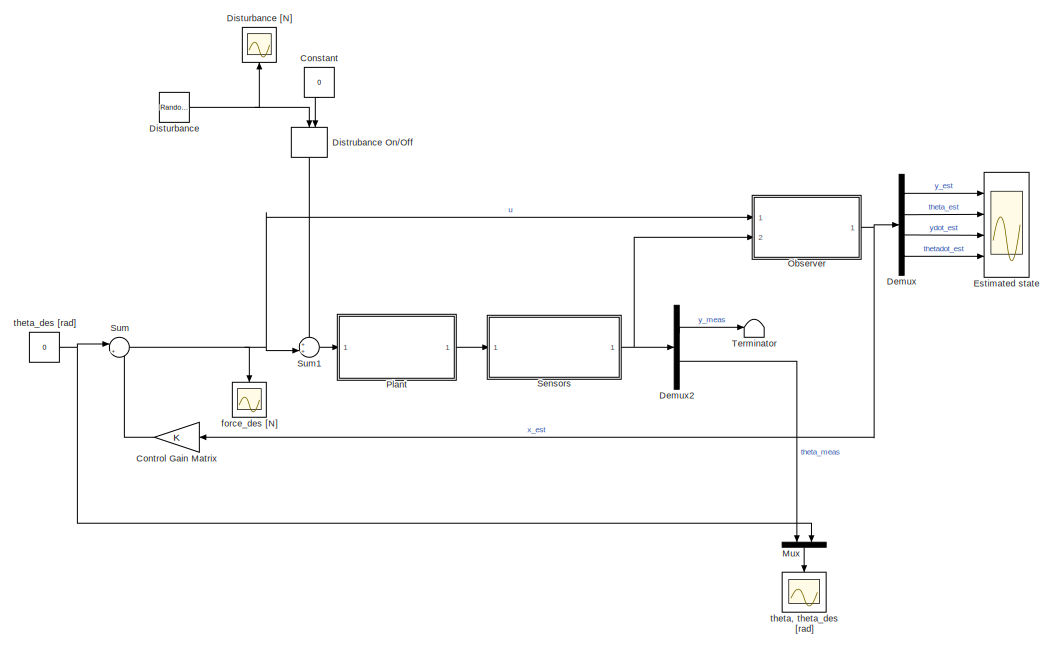
[diagram: root canvas - part 1/2, center side, full height]
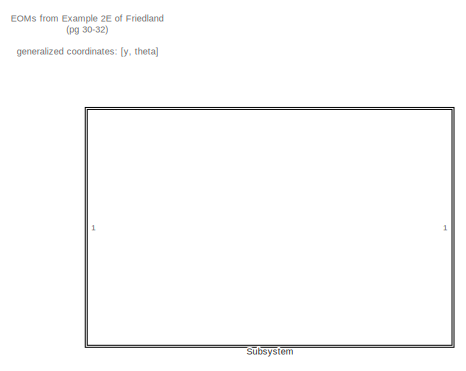
[diagram: root canvas - part 2/2, middle left region]
MODEL slx_8a9c9eab5e9f
KIND model
CONFIG InitFcn = pendulumOnACart_observer_PD_init;
BLOCK [Constant] Constant
  Value = 0
BLOCK [Gain] Control Gain Matrix
  Gain = K
  Multiplication = Matrix(K*u)
  OutDataTypeStr = Inherit: Inherit via internal rule
  ParamDataTypeStr = Inherit: Inherit via internal rule
  SaturateOnIntegerOverflow = off
BLOCK [Demux] Demux
  DisplayOption = bar
  Ports = [1, 4]
BLOCK [Demux] Demux2
  DisplayOption = bar
  Outputs = 2
  Ports = [1, 2]
BLOCK [ManualSwitch] Distrubance On//Off
  CurrentSetting = 0
BLOCK [RandomNumber] Disturbance
  SampleTime = dt*100
  Variance = .5
BLOCK [Scope] Disturbance [N]
  DataFormat = StructureWithTime
  Floating = off
  LimitDataPoints = off
  NumInputPorts = 1
  Ports = [1]
  SampleTime = 0
  SaveName = ScopeData7
  ShowLegends = off
  TimeRange = 5
  YMax = 80
  YMin = -20
BLOCK [Scope] Estimated state
  DataFormat = StructureWithTime
  Floating = off
  LimitDataPoints = off
  NumInputPorts = 4
  Ports = [4]
  SampleTime = 0
  SaveName = ScopeData5
  ShowLegends = off
  TimeRange = 5
  YMax = 5~0.09999999999999998~2~0
  YMin = -15~-0.3~-6~-2.5
  ZoomMode = yonly
BLOCK [Mux] Mux
  DisplayOption = bar
  Inputs = 2
  Ports = [2, 1]
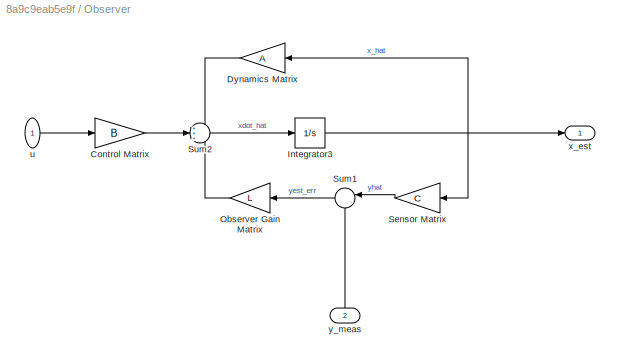
BLOCK [SubSystem] Observer
  FunctionWithSeparateData = off
  MaskHideContents = off
  MinAlgLoopOccurrences = off
  Opaque = off
  Ports = [2, 1]
  PropExecContextOutsideSubsystem = off
  RTWSystemCode = Auto
  RequestExecContextInheritance = off
BLOCK [Gain] Observer/Control Matrix
  Gain = B
  Multiplication = Matrix(K*u)
  OutDataTypeStr = Inherit: Inherit via internal rule
  ParamDataTypeStr = Inherit: Inherit via internal rule
  SaturateOnIntegerOverflow = off
BLOCK [Gain] Observer/Dynamics Matrix
  Gain = A
  Multiplication = Matrix(K*u)
  OutDataTypeStr = Inherit: Inherit via internal rule
  ParamDataTypeStr = Inherit: Inherit via internal rule
  SaturateOnIntegerOverflow = off
BLOCK [Integrator] Observer/Integrator3
  Ports = [1, 1]
BLOCK [Gain] Observer/Observer Gain Matrix
  Gain = L
  Multiplication = Matrix(K*u)
  OutDataTypeStr = Inherit: Inherit via internal rule
  ParamDataTypeStr = Inherit: Inherit via internal rule
  SaturateOnIntegerOverflow = off
BLOCK [Gain] Observer/Sensor Matrix
  Gain = C
  Multiplication = Matrix(K*u)
  OutDataTypeStr = Inherit: Inherit via internal rule
  ParamDataTypeStr = Inherit: Inherit via internal rule
  SaturateOnIntegerOverflow = off
BLOCK [Sum] Observer/Sum1
  IconShape = round
  InputSameDT = off
  Inputs = |-+
  OutDataTypeStr = Inherit: Inherit via internal rule
  Ports = [2, 1]
  SaturateOnIntegerOverflow = off
BLOCK [Sum] Observer/Sum2
  IconShape = round
  InputSameDT = off
  Inputs = +++
  OutDataTypeStr = Inherit: Inherit via internal rule
  Ports = [3, 1]
  SaturateOnIntegerOverflow = off
BLOCK [Inport] Observer/u
  IconDisplay = Port number
BLOCK [Outport] Observer/x_est
  IconDisplay = Port number
BLOCK [Inport] Observer/y_meas
  IconDisplay = Port number
  Port = 2
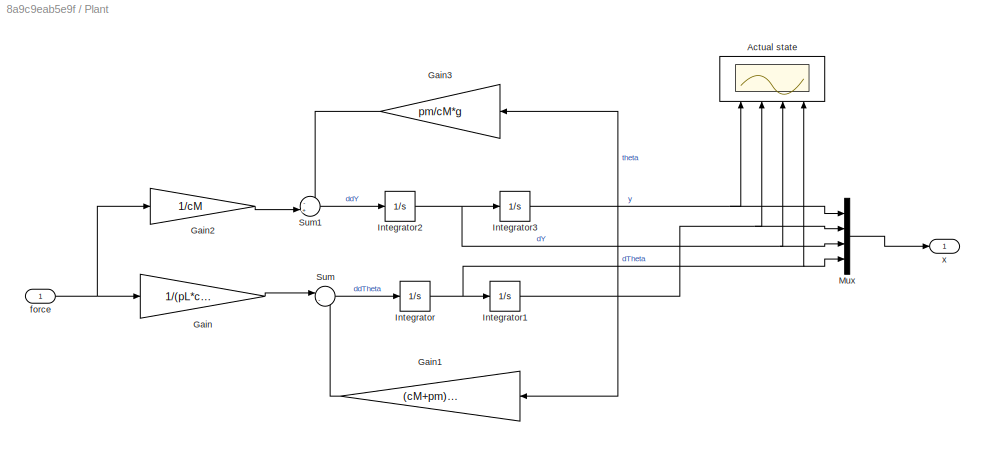
BLOCK [SubSystem] Plant
  FunctionWithSeparateData = off
  MaskHideContents = off
  MinAlgLoopOccurrences = off
  Opaque = off
  Ports = [1, 1]
  PropExecContextOutsideSubsystem = off
  RTWSystemCode = Auto
  RequestExecContextInheritance = off
BLOCK [Scope] Plant/Actual state
  DataFormat = StructureWithTime
  Floating = off
  LimitDataPoints = off
  NumInputPorts = 4
  Ports = [4]
  SampleTime = 0
  SaveName = ScopeData6
  ShowLegends = off
  TimeRange = 5
  YMax = 5~0.2~2~1
  YMin = -15~-0.3~-6~-2
BLOCK [Gain] Plant/Gain
  Gain = 1/(pL*cM)
  OutDataTypeStr = Inherit: Inherit via internal rule
  ParamDataTypeStr = Inherit: Inherit via internal rule
  SaturateOnIntegerOverflow = off
BLOCK [Gain] Plant/Gain1
  Gain = (cM+pm)/(pL*cM)*g
  OutDataTypeStr = Inherit: Inherit via internal rule
  ParamDataTypeStr = Inherit: Inherit via internal rule
  SaturateOnIntegerOverflow = off
BLOCK [Gain] Plant/Gain2
  Gain = 1/cM
  OutDataTypeStr = Inherit: Inherit via internal rule
  ParamDataTypeStr = Inherit: Inherit via internal rule
  SaturateOnIntegerOverflow = off
BLOCK [Gain] Plant/Gain3
  Gain = pm/cM*g
  OutDataTypeStr = Inherit: Inherit via internal rule
  ParamDataTypeStr = Inherit: Inherit via internal rule
  SaturateOnIntegerOverflow = off
BLOCK [Integrator] Plant/Integrator
  InitialCondition = dTheta_init
  Ports = [1, 1]
BLOCK [Integrator] Plant/Integrator1
  InitialCondition = theta_init
  Ports = [1, 1]
BLOCK [Integrator] Plant/Integrator2
  Ports = [1, 1]
BLOCK [Integrator] Plant/Integrator3
  Ports = [1, 1]
BLOCK [Mux] Plant/Mux
  DisplayOption = bar
  Ports = [4, 1]
BLOCK [Sum] Plant/Sum
  IconShape = round
  InputSameDT = off
  Inputs = |-+
  OutDataTypeStr = Inherit: Inherit via internal rule
  Ports = [2, 1]
  SaturateOnIntegerOverflow = off
BLOCK [Sum] Plant/Sum1
  IconShape = round
  InputSameDT = off
  Inputs = -+|
  OutDataTypeStr = Inherit: Inherit via internal rule
  Ports = [2, 1]
  SaturateOnIntegerOverflow = off
BLOCK [Inport] Plant/force
  IconDisplay = Port number
BLOCK [Outport] Plant/x
  IconDisplay = Port number
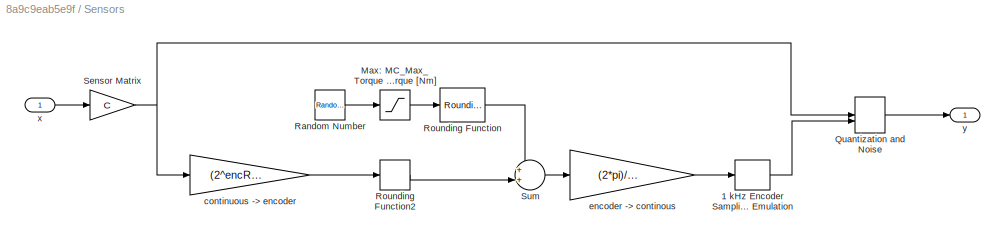
BLOCK [SubSystem] Sensors
  FunctionWithSeparateData = off
  MaskHideContents = off
  MinAlgLoopOccurrences = off
  Opaque = off
  Ports = [1, 1]
  PropExecContextOutsideSubsystem = off
  RTWSystemCode = Auto
  RequestExecContextInheritance = off
BLOCK [ZeroOrderHold] Sensors/1 kHz Encoder Sampling Emulation
  SampleTime = dt
BLOCK [Saturate] Sensors/Max: MC_Max_Torque [Nm] Min: MC_Min_Torque [Nm]
  InputPortMap = u0
  LowerLimit = -1
  Ports = [1, 1]
  UpperLimit = 1
BLOCK [ManualSwitch] Sensors/Quantization and Noise
  CurrentSetting = 0
BLOCK [RandomNumber] Sensors/Random Number
  SampleTime = dt*10
  Variance = 0.5
BLOCK [Rounding] Sensors/Rounding Function
  Operator = round
BLOCK [Rounding] Sensors/Rounding Function2
BLOCK [Gain] Sensors/Sensor Matrix
  Gain = C
  Multiplication = Matrix(K*u)
  OutDataTypeStr = Inherit: Inherit via internal rule
  ParamDataTypeStr = Inherit: Inherit via internal rule
  SaturateOnIntegerOverflow = off
BLOCK [Sum] Sensors/Sum
  IconShape = round
  InputSameDT = off
  Inputs = ++|
  OutDataTypeStr = Inherit: Inherit via internal rule
  Ports = [2, 1]
  SaturateOnIntegerOverflow = off
BLOCK [Gain] Sensors/continuous -> encoder
  Gain = (2^encRez)/(2*pi)
  OutDataTypeStr = Inherit: Inherit via internal rule
  ParamDataTypeStr = Inherit: Inherit via internal rule
  SaturateOnIntegerOverflow = off
BLOCK [Gain] Sensors/encoder -> continous
  Gain = (2*pi)/(2^encRez)
  OutDataTypeStr = Inherit: Inherit via internal rule
  ParamDataTypeStr = Inherit: Inherit via internal rule
  SaturateOnIntegerOverflow = off
BLOCK [Inport] Sensors/x
  IconDisplay = Port number
BLOCK [Outport] Sensors/y
  IconDisplay = Port number
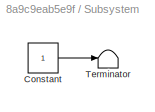
BLOCK [SubSystem] Subsystem
  FunctionWithSeparateData = off
  MaskHideContents = off
  MinAlgLoopOccurrences = off
  Opaque = off
  Ports = []
  PropExecContextOutsideSubsystem = off
  RTWSystemCode = Auto
  RequestExecContextInheritance = off
  ShowPortLabels = none
BLOCK [Constant] Subsystem/Constant
BLOCK [Terminator] Subsystem/Terminator
BLOCK [Sum] Sum
  IconShape = round
  InputSameDT = off
  Inputs = |+-
  OutDataTypeStr = Inherit: Inherit via internal rule
  Ports = [2, 1]
  SaturateOnIntegerOverflow = off
BLOCK [Sum] Sum1
  IconShape = round
  InputSameDT = off
  Inputs = ++|
  OutDataTypeStr = Inherit: Inherit via internal rule
  Ports = [2, 1]
  SaturateOnIntegerOverflow = off
BLOCK [Terminator] Terminator
BLOCK [Scope] force_des [N]
  DataFormat = StructureWithTime
  Floating = off
  LimitDataPoints = off
  NumInputPorts = 1
  Ports = [1]
  SampleTime = 0
  SaveName = ScopeData1
  ShowLegends = off
  TimeRange = 5
  YMax = 80
  YMin = -20
BLOCK [Scope] theta, theta_des [rad]
  DataFormat = StructureWithTime
  Floating = off
  LimitDataPoints = off
  NumInputPorts = 1
  Ports = [1]
  SampleTime = 0
  ShowLegends = off
  TimeRange = 20
  YMax = 0.6000000000000001
  YMin = -0.8
BLOCK [Constant] theta_des [rad]
  Value = 0
ANNOTATION (root): EOMs from Example 2E of Friedland (pg 30-32) generalized coordinates: [y, theta]
LINE Constant:1 -> Distrubance On//Off:2
LINE Control Gain Matrix:1 -> Sum:2
LINE Demux2:1 -> Terminator:1
LINE Demux2:2 -> Mux:1
LINE Demux:1 -> Estimated state:1
LINE Demux:2 -> Estimated state:2
LINE Demux:3 -> Estimated state:3
LINE Demux:4 -> Estimated state:4
LINE Distrubance On//Off:1 -> Sum1:1
NET Disturbance:1 -> Distrubance On//Off:1, Disturbance [N]:1
LINE Mux:1 -> theta, theta_des [rad]:1
LINE Observer/Control Matrix:1 -> Observer/Sum2:2
LINE Observer/Dynamics Matrix:1 -> Observer/Sum2:1
NET Observer/Integrator3:1 -> Observer/Dynamics Matrix:1, Observer/Sensor Matrix:1, Observer/x_est:1
LINE Observer/Observer Gain Matrix:1 -> Observer/Sum2:3
LINE Observer/Sensor Matrix:1 -> Observer/Sum1:1
LINE Observer/Sum1:1 -> Observer/Observer Gain Matrix:1
LINE Observer/Sum2:1 -> Observer/Integrator3:1
LINE Observer/u:1 -> Observer/Control Matrix:1
LINE Observer/y_meas:1 -> Observer/Sum1:2
NET Observer:1 -> Control Gain Matrix:1, Demux:1
LINE Plant/Gain1:1 -> Plant/Sum:2
LINE Plant/Gain2:1 -> Plant/Sum1:2
LINE Plant/Gain3:1 -> Plant/Sum1:1
LINE Plant/Gain:1 -> Plant/Sum:1
NET Plant/Integrator1:1 -> Plant/Actual state:2, Plant/Gain1:1, Plant/Gain3:1, Plant/Mux:2
NET Plant/Integrator2:1 -> Plant/Actual state:3, Plant/Integrator3:1, Plant/Mux:3
NET Plant/Integrator3:1 -> Plant/Actual state:1, Plant/Mux:1
NET Plant/Integrator:1 -> Plant/Actual state:4, Plant/Integrator1:1, Plant/Mux:4
LINE Plant/Mux:1 -> Plant/x:1
LINE Plant/Sum1:1 -> Plant/Integrator2:1
LINE Plant/Sum:1 -> Plant/Integrator:1
NET Plant/force:1 -> Plant/Gain2:1, Plant/Gain:1
LINE Plant:1 -> Sensors:1
LINE Sensors/1 kHz Encoder Sampling Emulation:1 -> Sensors/Quantization and Noise:2
LINE Sensors/Max: MC_Max_Torque [Nm] Min: MC_Min_Torque [Nm]:1 -> Sensors/Rounding Function:1
LINE Sensors/Quantization and Noise:1 -> Sensors/y:1
LINE Sensors/Random Number:1 -> Sensors/Max: MC_Max_Torque [Nm] Min: MC_Min_Torque [Nm]:1
LINE Sensors/Rounding Function2:1 -> Sensors/Sum:2
LINE Sensors/Rounding Function:1 -> Sensors/Sum:1
NET Sensors/Sensor Matrix:1 -> Sensors/Quantization and Noise:1, Sensors/continuous -> encoder:1
LINE Sensors/Sum:1 -> Sensors/encoder -> continous:1
LINE Sensors/continuous -> encoder:1 -> Sensors/Rounding Function2:1
LINE Sensors/encoder -> continous:1 -> Sensors/1 kHz Encoder Sampling Emulation:1
LINE Sensors/x:1 -> Sensors/Sensor Matrix:1
NET Sensors:1 -> Demux2:1, Observer:2
LINE Subsystem/Constant:1 -> Subsystem/Terminator:1
LINE Sum1:1 -> Plant:1
NET Sum:1 -> Observer:1, Sum1:2, force_des [N]:1
NET theta_des [rad]:1 -> Mux:2, Sum:1
note: NET lines group one-source signal fan-out (src -> all destinations, sorted); 1:1 wires keep LINE
